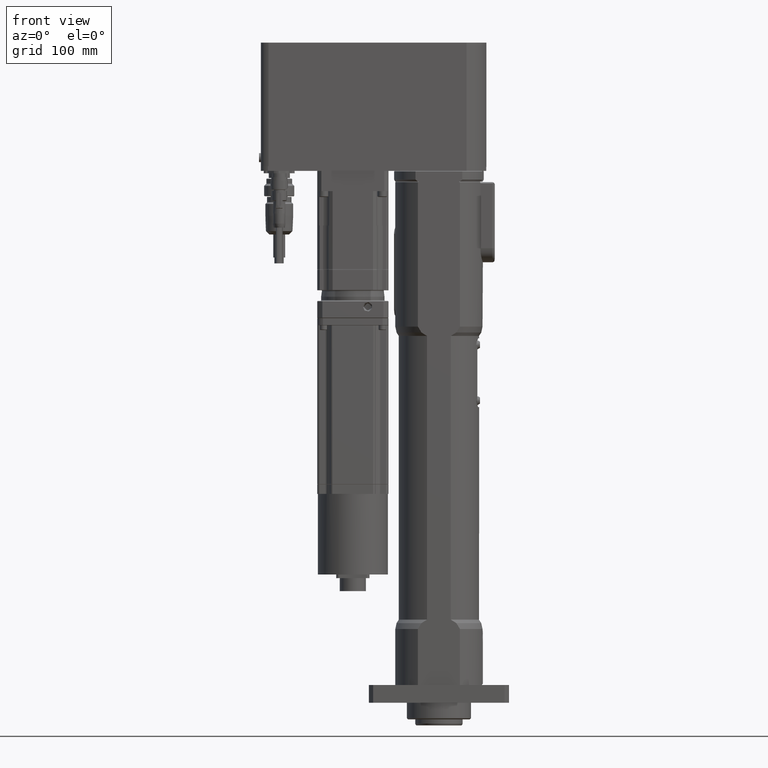
[diagram: clean part render]
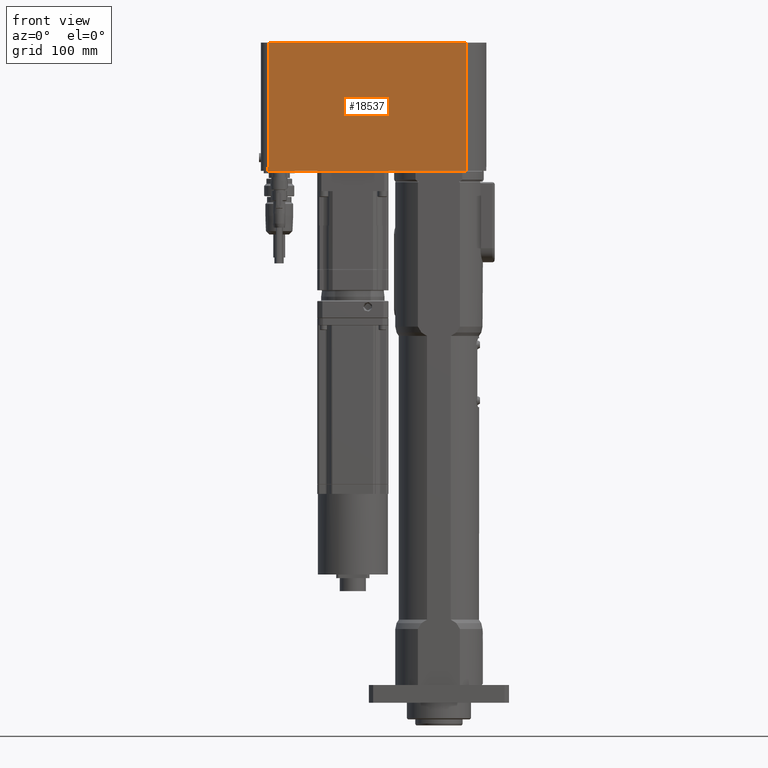
[diagram: same view with one face highlighted and labeled with its STEP entity id]
A machine part, front view. The second image highlights one B-rep face of the part: STEP entity #18537.
In plain terms, the highlighted planar face has unit normal (0, -1, 0).
Its self-contained STEP definition (entity closure, byte-faithful):
#3626=FACE_OUTER_BOUND('',#4863,.T.);
#4863=EDGE_LOOP('',(#14707,#14708,#14709,#14710,#14711,#14712));
#6259=LINE('',#32278,#7572);
#6260=LINE('',#32282,#7573);
#6261=LINE('',#32284,#7574);
#6262=LINE('',#32286,#7575);
#6263=LINE('',#32288,#7576);
#6264=LINE('',#32289,#7577);
#7572=VECTOR('',#23516,3.99999999999999);
#7573=VECTOR('',#23521,167.318447632722);
#7574=VECTOR('',#23522,108.);
#7575=VECTOR('',#23523,166.718447632722);
#7576=VECTOR('',#23524,104.);
#7577=VECTOR('',#23525,0.599999999999987);
#9071=VERTEX_POINT('',#32275);
#9072=VERTEX_POINT('',#32277);
#9073=VERTEX_POINT('',#32281);
#9074=VERTEX_POINT('',#32283);
#9075=VERTEX_POINT('',#32285);
#9076=VERTEX_POINT('',#32287);
#11099=EDGE_CURVE('',#9071,#9072,#6259,.T.);
#11101=EDGE_CURVE('',#9071,#9073,#6260,.T.);
#11102=EDGE_CURVE('',#9073,#9074,#6261,.T.);
#11103=EDGE_CURVE('',#9075,#9074,#6262,.T.);
#11104=EDGE_CURVE('',#9076,#9075,#6263,.T.);
#11105=EDGE_CURVE('',#9072,#9076,#6264,.T.);
#14707=ORIENTED_EDGE('',*,*,#11101,.T.);
#14708=ORIENTED_EDGE('',*,*,#11102,.T.);
#14709=ORIENTED_EDGE('',*,*,#11103,.F.);
#14710=ORIENTED_EDGE('',*,*,#11104,.F.);
#14711=ORIENTED_EDGE('',*,*,#11105,.F.);
#14712=ORIENTED_EDGE('',*,*,#11099,.F.);
#17772=PLANE('',#20005);
#18537=ADVANCED_FACE('',(#3626),#17772,.T.);
#20005=AXIS2_PLACEMENT_3D('',#32280,#23519,#23520);
#23516=DIRECTION('',(0.,0.,1.));
#23519=DIRECTION('center_axis',(0.,-1.,0.));
#23520=DIRECTION('ref_axis',(1.,0.,0.));
#23521=DIRECTION('',(1.,0.,0.));
#23522=DIRECTION('',(0.,0.,1.));
#23523=DIRECTION('',(1.,3.7667155158515E-16,0.));
#23524=DIRECTION('',(0.,0.,1.));
#23525=DIRECTION('',(1.,0.,0.));
#32275=CARTESIAN_POINT('',(-144.,-32.5,462.));
#32277=CARTESIAN_POINT('',(-144.,-32.5,466.));
#32278=CARTESIAN_POINT('',(-144.,-32.5,462.));
#32280=CARTESIAN_POINT('Origin',(-144.,-32.5,462.));
#32281=CARTESIAN_POINT('',(23.318447632722,-32.5,462.));
#32282=CARTESIAN_POINT('',(-144.,-32.5,462.));
#32283=CARTESIAN_POINT('',(23.3184476327221,-32.5,570.));
#32284=CARTESIAN_POINT('',(23.318447632722,-32.5,462.));
#32285=CARTESIAN_POINT('',(-143.4,-32.5000000000001,570.));
#32286=CARTESIAN_POINT('',(-143.4,-32.5000000000001,570.));
#32287=CARTESIAN_POINT('',(-143.4,-32.5000000000001,466.));
#32288=CARTESIAN_POINT('',(-143.4,-32.5000000000001,466.));
#32289=CARTESIAN_POINT('',(-144.,-32.5,466.));